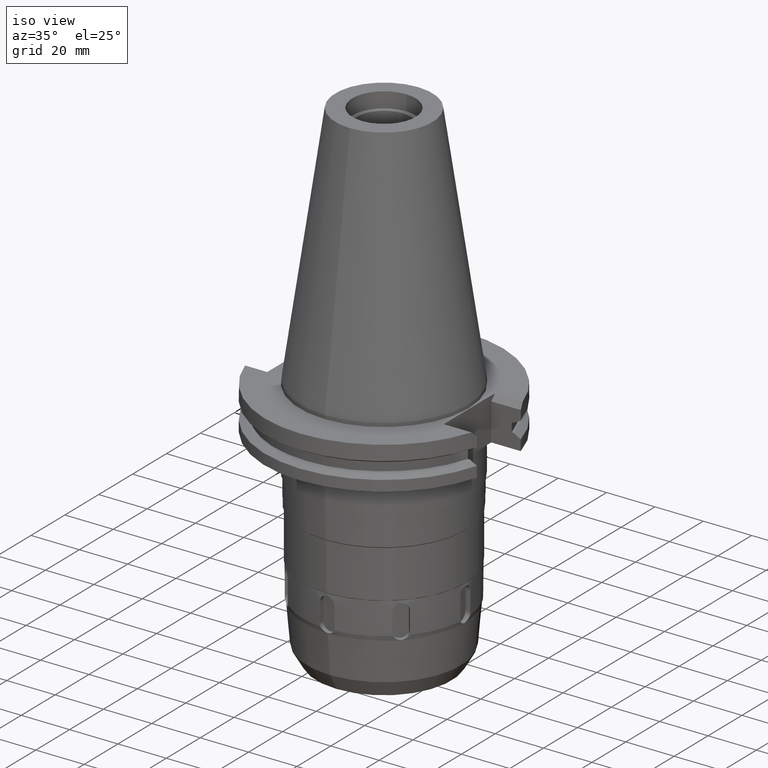
[diagram: clean part render]
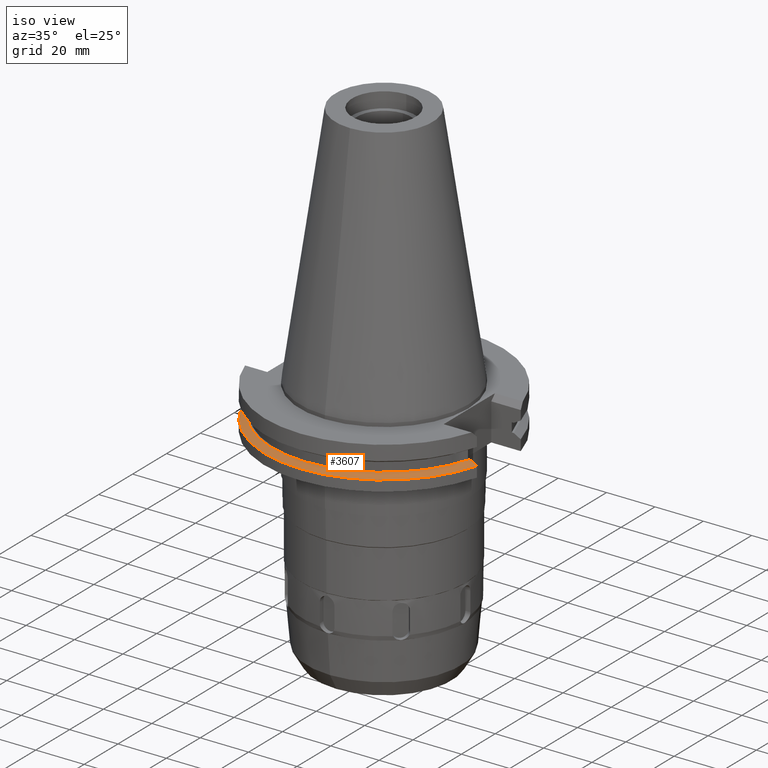
[diagram: same view with one face highlighted and labeled with its STEP entity id]
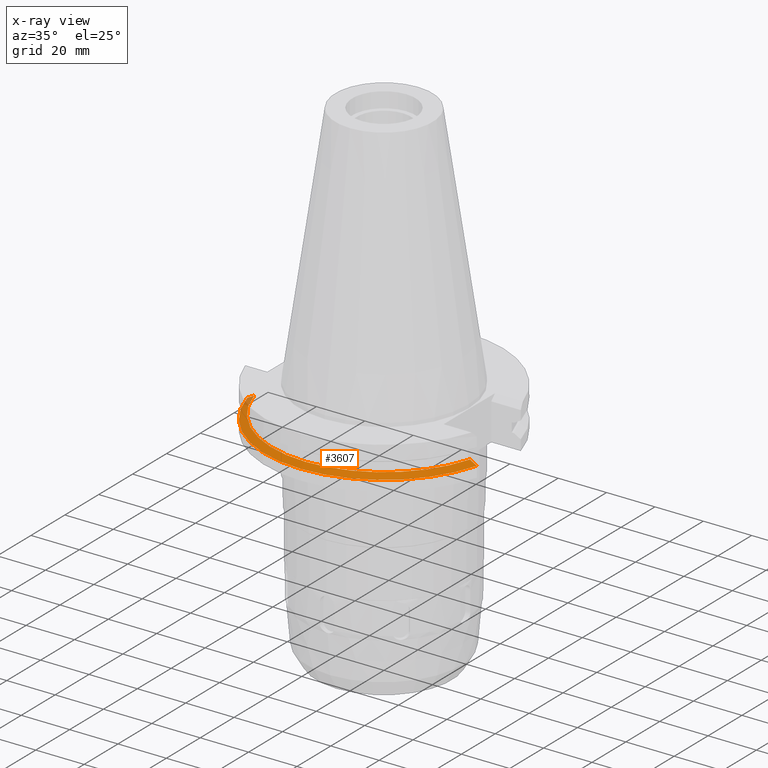
[diagram: x-ray of the same camera — body ghosted, the highlighted face saturated]
A machine part, iso view. The second image highlights one B-rep face of the part: STEP entity #3607.
The next image is the same camera in x-ray: the body ghosted, the highlighted face saturated — about 2% of this face is hidden behind the body in this view.
In plain terms, the highlighted conical surface has half-angle 60 deg.
Its self-contained STEP definition (entity closure, byte-faithful):
#750=CARTESIAN_POINT('',(0.E0,0.E0,-1.305E1));
#751=DIRECTION('',(0.E0,0.E0,-1.E0));
#752=DIRECTION('',(9.603030497578E-1,-2.789588726423E-1,0.E0));
#753=AXIS2_PLACEMENT_3D('',#750,#751,#752);
#758=CARTESIAN_POINT('',(0.E0,0.E0,-1.305E1));
#759=DIRECTION('',(0.E0,0.E0,-1.E0));
#760=DIRECTION('',(0.E0,-1.E0,0.E0));
#761=AXIS2_PLACEMENT_3D('',#758,#759,#760);
#782=CARTESIAN_POINT('',(4.459698984217E1,-1.2955E1,-1.305E1));
#783=CARTESIAN_POINT('',(4.491760389990E1,-1.2955E1,-1.322775844455E1));
#784=CARTESIAN_POINT('',(4.555857771566E1,-1.2955E1,-1.358345362194E1));
#785=CARTESIAN_POINT('',(4.651933991476E1,-1.2955E1,-1.411741678373E1));
#786=CARTESIAN_POINT('',(4.715939278874E1,-1.2955E1,-1.447365041657E1));
#787=CARTESIAN_POINT('',(4.747930285925E1,-1.2955E1,-1.465183664206E1));
#792=CARTESIAN_POINT('',(0.E0,0.E0,-1.465183664206E1));
#793=DIRECTION('',(0.E0,0.E0,-1.E0));
#794=DIRECTION('',(9.647323551610E-1,-2.632327542416E-1,0.E0));
#795=AXIS2_PLACEMENT_3D('',#792,#793,#794);
#800=CARTESIAN_POINT('',(0.E0,0.E0,-1.465183664206E1));
#801=DIRECTION('',(0.E0,0.E0,-1.E0));
#802=DIRECTION('',(0.E0,-1.E0,0.E0));
#803=AXIS2_PLACEMENT_3D('',#800,#801,#802);
#808=CARTESIAN_POINT('',(-4.747930285925E1,-1.2955E1,-1.465183664206E1));
#809=CARTESIAN_POINT('',(-4.715939278873E1,-1.2955E1,-1.447365041656E1));
#810=CARTESIAN_POINT('',(-4.651933991473E1,-1.2955E1,-1.411741678372E1));
#811=CARTESIAN_POINT('',(-4.555857771563E1,-1.2955E1,-1.358345362193E1));
#812=CARTESIAN_POINT('',(-4.491760389988E1,-1.2955E1,-1.322775844454E1));
#813=CARTESIAN_POINT('',(-4.459698984217E1,-1.2955E1,-1.305E1));
#2987=CARTESIAN_POINT('',(4.747930285925E1,-1.2955E1,-1.465183664206E1));
#2988=VERTEX_POINT('',#2987);
#2989=VERTEX_POINT('',#782);
#2996=CARTESIAN_POINT('',(-4.747930285925E1,-1.2955E1,-1.465183664206E1));
#2997=VERTEX_POINT('',#2996);
#2998=CARTESIAN_POINT('',(1.243449787580E-14,-4.9215E1,-1.465183664206E1));
#2999=VERTEX_POINT('',#2998);
#3011=CARTESIAN_POINT('',(-4.459698984217E1,-1.2955E1,-1.305E1));
#3012=VERTEX_POINT('',#3011);
#3026=CARTESIAN_POINT('',(1.421085471520E-14,-4.644053755053E1,-1.305E1));
#3027=VERTEX_POINT('',#3026);
#3594=CARTESIAN_POINT('',(0.E0,0.E0,-1.385091832103E1));
#3595=DIRECTION('',(0.E0,0.E0,-1.E0));
#3596=DIRECTION('',(0.E0,-1.E0,0.E0));
#3597=AXIS2_PLACEMENT_3D('',#3594,#3595,#3596);
#3598=CONICAL_SURFACE('',#3597,4.782776877527E1,6.E1);
#3599=ORIENTED_EDGE('',*,*,#3474,.T.);
#3600=ORIENTED_EDGE('',*,*,#3502,.T.);
#3601=ORIENTED_EDGE('',*,*,#3500,.T.);
#3602=ORIENTED_EDGE('',*,*,#3524,.T.);
#3603=ORIENTED_EDGE('',*,*,#3586,.F.);
#3604=ORIENTED_EDGE('',*,*,#3584,.F.);
#3605=EDGE_LOOP('',(#3599,#3600,#3601,#3602,#3603,#3604));
#3606=FACE_OUTER_BOUND('',#3605,.F.);
#754=CIRCLE('',#753,4.644053755053E1);
#762=CIRCLE('',#761,4.644053755053E1);
#788=B_SPLINE_CURVE_WITH_KNOTS('',3,(#782,#783,#784,#785,#786,#787),
.UNSPECIFIED.,.F.,.F.,(4,1,1,4),(0.E0,3.333333333333E-1,6.666666666667E-1,1.E0),
.UNSPECIFIED.);
#796=CIRCLE('',#795,4.9215E1);
#804=CIRCLE('',#803,4.9215E1);
#814=B_SPLINE_CURVE_WITH_KNOTS('',3,(#808,#809,#810,#811,#812,#813),
.UNSPECIFIED.,.F.,.F.,(4,1,1,4),(0.E0,3.333333333333E-1,6.666666666667E-1,1.E0),
.UNSPECIFIED.);
#3474=EDGE_CURVE('',#2989,#2988,#788,.T.);
#3500=EDGE_CURVE('',#2999,#2997,#804,.T.);
#3502=EDGE_CURVE('',#2988,#2999,#796,.T.);
#3524=EDGE_CURVE('',#2997,#3012,#814,.T.);
#3584=EDGE_CURVE('',#2989,#3027,#754,.T.);
#3586=EDGE_CURVE('',#3027,#3012,#762,.T.);
#3607=ADVANCED_FACE('',(#3606),#3598,.T.);